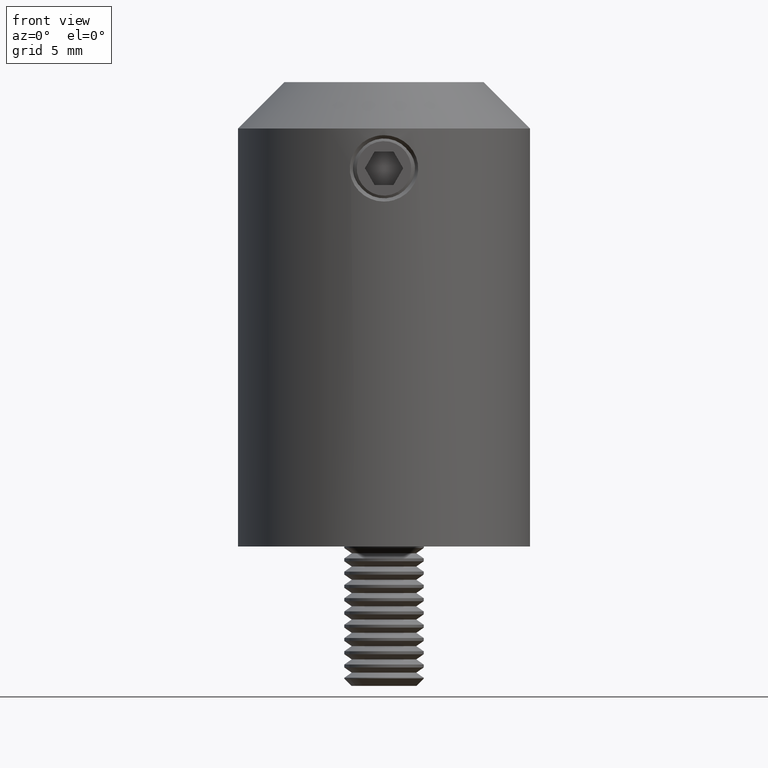
[diagram: clean part render]
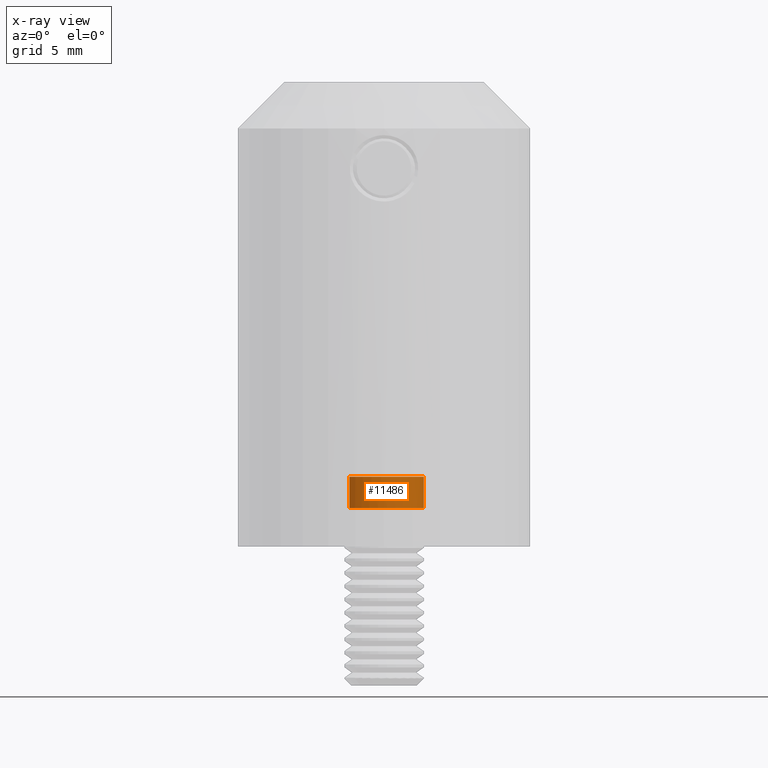
[diagram: x-ray — body ghosted, one internal face saturated and labeled with its STEP entity id]
A machine part, front view, then the same camera in x-ray: the body is ghosted and one INTERNAL B-rep face — a face not visible from any outside direction — is saturated and labeled: STEP entity #11486.
In plain terms, the highlighted cylindrical surface (partial cylindrical patch) has radius 3 mm, axis along (0, 0, 1).
Its self-contained STEP definition (entity closure, byte-faithful):
#8 = CARTESIAN_POINT ( 'NONE',  ( 8.611734920062708909, 6.695665280107540138E-15, -3.000000000000001332 ) ) ;
#193 = DIRECTION ( 'NONE',  ( -1.000000000000000000, 0.000000000000000000, 0.000000000000000000 ) ) ;
#641 = AXIS2_PLACEMENT_3D ( 'NONE', #9153, #12394, #14170 ) ;
#1097 = DIRECTION ( 'NONE',  ( -1.000000000000000000, 0.000000000000000000, 0.000000000000000000 ) ) ;
#1237 = EDGE_CURVE ( 'NONE', #13300, #12450, #16746, .T. ) ;
#2895 = CIRCLE ( 'NONE', #641, 3.000000000000038636 ) ;
#3156 = VECTOR ( 'NONE', #15557, 1000.000000000000000 ) ;
#3436 = LINE ( 'NONE', #8998, #3156 ) ;
#3451 = CARTESIAN_POINT ( 'NONE',  ( -31.74999999999995737, 6.695665280107600880E-15, -3.000000000000036415 ) ) ;
#3933 = CARTESIAN_POINT ( 'NONE',  ( 6.250000000000005329, 0.000000000000000000, 0.000000000000000000 ) ) ;
#8173 = CARTESIAN_POINT ( 'NONE',  ( 6.250000000000005329, 6.695665280107517261E-15, -2.999999999999999112 ) ) ;
#8239 = VERTEX_POINT ( 'NONE', #8173 ) ;
#8998 = CARTESIAN_POINT ( 'NONE',  ( -31.74999999999995737, -6.328271240363389914E-15, 3.000000000000036415 ) ) ;
#9153 = CARTESIAN_POINT ( 'NONE',  ( 8.611734920062708909, 1.443411047392907328E-15, 9.629649721936179265E-32 ) ) ;
#9929 = CARTESIAN_POINT ( 'NONE',  ( 8.611734920062708909, 1.443411047392907328E-15, 9.629649721936179265E-32 ) ) ;
#10002 = DIRECTION ( 'NONE',  ( 0.000000000000000000, -1.000000000000000000, -2.109423746787771000E-15 ) ) ;
#10767 = VERTEX_POINT ( 'NONE', #8 ) ;
#11486 = ADVANCED_FACE ( 'NONE', ( #21446 ), #14075, .T. ) ;
#11671 = ORIENTED_EDGE ( 'NONE', *, *, #16802, .T. ) ;
#11916 = VECTOR ( 'NONE', #193, 1000.000000000000000 ) ;
#12163 = LINE ( 'NONE', #3451, #11916 ) ;
#12394 = DIRECTION ( 'NONE',  ( -1.000000000000000000, -1.224606353822404868E-16, 0.000000000000000000 ) ) ;
#12438 = DIRECTION ( 'NONE',  ( 1.000000000000000000, 0.000000000000000000, 0.000000000000000000 ) ) ;
#12450 = VERTEX_POINT ( 'NONE', #20433 ) ;
#13300 = VERTEX_POINT ( 'NONE', #17263 ) ;
#13535 = EDGE_CURVE ( 'NONE', #10767, #8239, #12163, .T. ) ;
#13562 = VERTEX_POINT ( 'NONE', #13733 ) ;
#13654 = EDGE_CURVE ( 'NONE', #12450, #13562, #3436, .T. ) ;
#13666 = CIRCLE ( 'NONE', #20560, 3.000000000000036415 ) ;
#13733 = CARTESIAN_POINT ( 'NONE',  ( 6.250000000000005329, -6.328271240363311817E-15, 2.999999999999999112 ) ) ;
#14075 = CYLINDRICAL_SURFACE ( 'NONE', #17538, 3.000000000000036415 ) ;
#14170 = DIRECTION ( 'NONE',  ( 0.000000000000000000, -1.000000000000000000, -2.109423746787771000E-15 ) ) ;
#15073 = ORIENTED_EDGE ( 'NONE', *, *, #1237, .T. ) ;
#15557 = DIRECTION ( 'NONE',  ( -1.000000000000000000, 0.000000000000000000, 0.000000000000000000 ) ) ;
#15559 = AXIS2_PLACEMENT_3D ( 'NONE', #9929, #18461, #10002 ) ;
#16295 = DIRECTION ( 'NONE',  ( 0.000000000000000000, -2.109423746787771000E-15, 1.000000000000000000 ) ) ;
#16746 = CIRCLE ( 'NONE', #15559, 3.000000000000038636 ) ;
#16802 = EDGE_CURVE ( 'NONE', #13562, #8239, #13666, .T. ) ;
#17263 = CARTESIAN_POINT ( 'NONE',  ( 8.611734920062708909, -3.000000000000042188, -6.328271240363404113E-15 ) ) ;
#17361 = DIRECTION ( 'NONE',  ( 0.000000000000000000, 2.109423746787771000E-15, -1.000000000000000000 ) ) ;
#17538 = AXIS2_PLACEMENT_3D ( 'NONE', #19703, #1097, #16295 ) ;
#18322 = EDGE_CURVE ( 'NONE', #10767, #13300, #2895, .T. ) ;
#18461 = DIRECTION ( 'NONE',  ( -1.000000000000000000, -1.224606353822404868E-16, 0.000000000000000000 ) ) ;
#18817 = ORIENTED_EDGE ( 'NONE', *, *, #13654, .T. ) ;
#19364 = EDGE_LOOP ( 'NONE', ( #19611, #21323, #15073, #18817, #11671 ) ) ;
#19611 = ORIENTED_EDGE ( 'NONE', *, *, #13535, .F. ) ;
#19703 = CARTESIAN_POINT ( 'NONE',  ( -31.74999999999995737, 0.000000000000000000, 0.000000000000000000 ) ) ;
#20433 = CARTESIAN_POINT ( 'NONE',  ( 8.611734920062708909, -6.328271240363299195E-15, 3.000000000000001332 ) ) ;
#20560 = AXIS2_PLACEMENT_3D ( 'NONE', #3933, #12438, #17361 ) ;
#21323 = ORIENTED_EDGE ( 'NONE', *, *, #18322, .T. ) ;
#21446 = FACE_OUTER_BOUND ( 'NONE', #19364, .T. ) ;